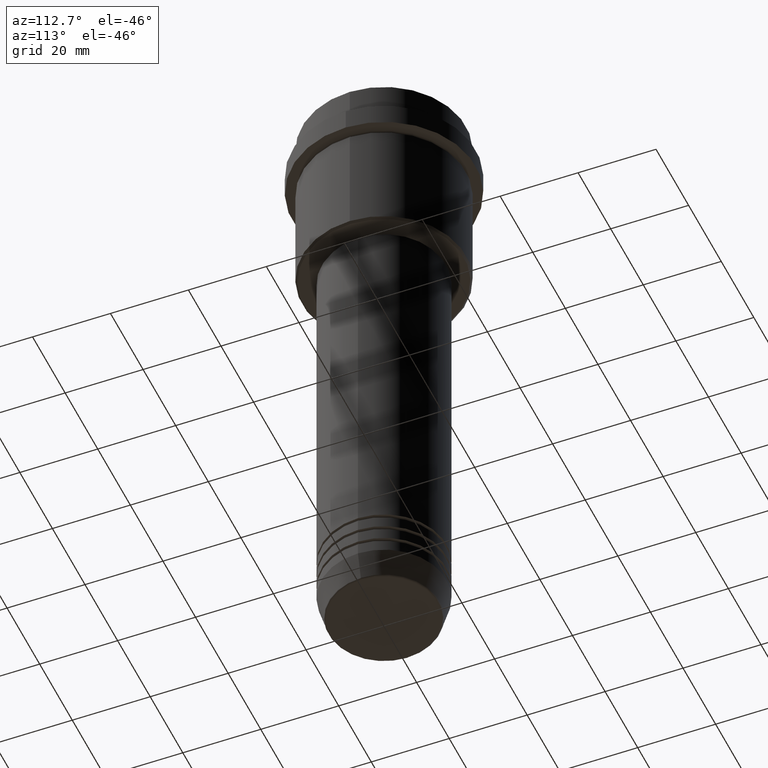
[diagram: clean part render]
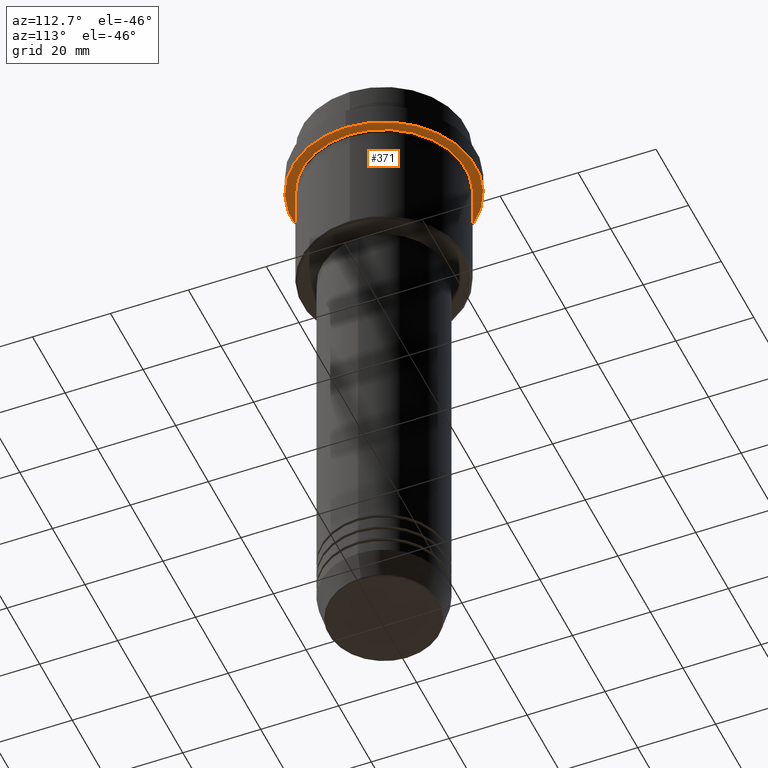
[diagram: same view with one face highlighted and labeled with its STEP entity id]
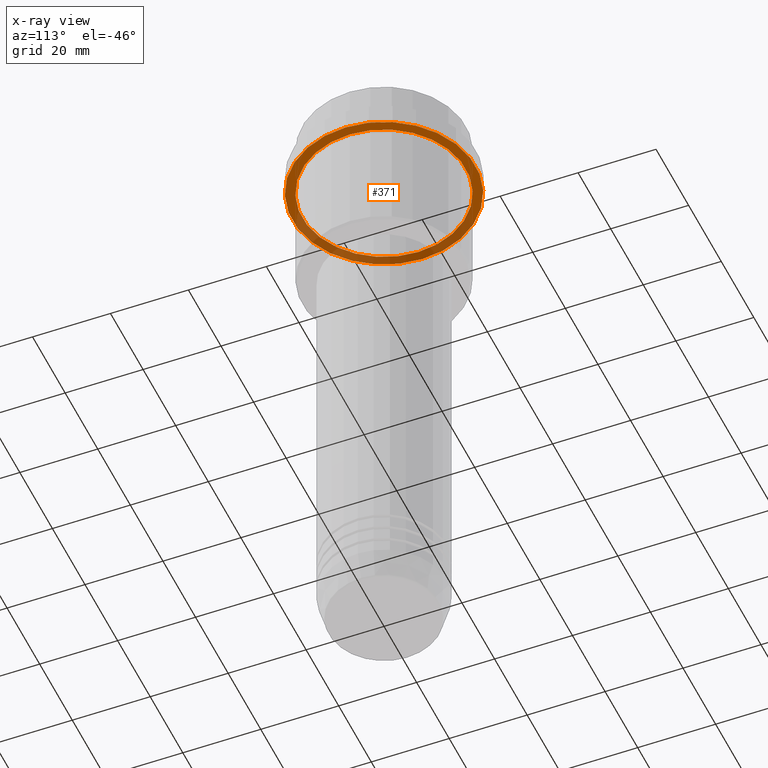
[diagram: x-ray of the same camera — body ghosted, the highlighted face saturated]
A machine part, auxiliary view. The second image highlights one B-rep face of the part: STEP entity #371.
The next image is the same camera in x-ray: the body ghosted, the highlighted face saturated — about 38% of this face is hidden behind the body in this view.
In plain terms, the highlighted planar face has unit normal (0, 0, -1).
Its self-contained STEP definition (entity closure, byte-faithful):
#4 = CIRCLE ( 'NONE', #156, 23.50000000000000355 ) ;
#56 = DIRECTION ( 'NONE',  ( -1.000000000000000000, 0.000000000000000000, 0.000000000000000000 ) ) ;
#93 = EDGE_CURVE ( 'NONE', #1173, #609, #4, .T. ) ;
#146 = CARTESIAN_POINT ( 'NONE',  ( 0.000000000000000000, 23.50000000000000355, -15.00000000000000178 ) ) ;
#156 = AXIS2_PLACEMENT_3D ( 'NONE', #729, #1270, #391 ) ;
#165 = EDGE_CURVE ( 'NONE', #209, #979, #1379, .T. ) ;
#189 = CARTESIAN_POINT ( 'NONE',  ( 0.000000000000000000, 0.000000000000000000, -15.00000000000000178 ) ) ;
#209 = VERTEX_POINT ( 'NONE', #1317 ) ;
#211 = EDGE_CURVE ( 'NONE', #609, #1173, #936, .T. ) ;
#320 = DIRECTION ( 'NONE',  ( -0.000000000000000000, -0.000000000000000000, 1.000000000000000000 ) ) ;
#325 = DIRECTION ( 'NONE',  ( 1.000000000000000000, 0.000000000000000000, 0.000000000000000000 ) ) ;
#371 = ADVANCED_FACE ( 'NONE', ( #806, #1125 ), #458, .T. ) ;
#391 = DIRECTION ( 'NONE',  ( 1.000000000000000000, 0.000000000000000000, 0.000000000000000000 ) ) ;
#418 = CARTESIAN_POINT ( 'NONE',  ( 23.50000000000000355, 0.000000000000000000, -15.00000000000000000 ) ) ;
#456 = CARTESIAN_POINT ( 'NONE',  ( 0.000000000000000000, 0.000000000000000000, -15.00000000000000178 ) ) ;
#458 = PLANE ( 'NONE',  #1204 ) ;
#528 = DIRECTION ( 'NONE',  ( -0.000000000000000000, -0.000000000000000000, 1.000000000000000000 ) ) ;
#572 = DIRECTION ( 'NONE',  ( -1.000000000000000000, 0.000000000000000000, 0.000000000000000000 ) ) ;
#585 = ORIENTED_EDGE ( 'NONE', *, *, #165, .T. ) ;
#586 = DIRECTION ( 'NONE',  ( 0.000000000000000000, 0.000000000000000000, -1.000000000000000000 ) ) ;
#609 = VERTEX_POINT ( 'NONE', #418 ) ;
#663 = CARTESIAN_POINT ( 'NONE',  ( 0.000000000000000000, 0.000000000000000000, -15.00000000000000000 ) ) ;
#696 = DIRECTION ( 'NONE',  ( -0.000000000000000000, -0.000000000000000000, 1.000000000000000000 ) ) ;
#707 = CARTESIAN_POINT ( 'NONE',  ( -20.99999999999999289, 0.000000000000000000, -15.00000000000000178 ) ) ;
#729 = CARTESIAN_POINT ( 'NONE',  ( 0.000000000000000000, 0.000000000000000000, -15.00000000000000000 ) ) ;
#763 = CIRCLE ( 'NONE', #1272, 20.99999999999999289 ) ;
#806 = FACE_BOUND ( 'NONE', #1192, .T. ) ;
#871 = AXIS2_PLACEMENT_3D ( 'NONE', #663, #320, #325 ) ;
#936 = CIRCLE ( 'NONE', #871, 23.50000000000000355 ) ;
#938 = EDGE_CURVE ( 'NONE', #979, #209, #763, .T. ) ;
#979 = VERTEX_POINT ( 'NONE', #707 ) ;
#1013 = ORIENTED_EDGE ( 'NONE', *, *, #211, .F. ) ;
#1023 = AXIS2_PLACEMENT_3D ( 'NONE', #189, #528, #56 ) ;
#1024 = EDGE_LOOP ( 'NONE', ( #1013, #1064 ) ) ;
#1026 = DIRECTION ( 'NONE',  ( -1.000000000000000000, 0.000000000000000000, -0.000000000000000000 ) ) ;
#1064 = ORIENTED_EDGE ( 'NONE', *, *, #93, .F. ) ;
#1125 = FACE_OUTER_BOUND ( 'NONE', #1024, .T. ) ;
#1173 = VERTEX_POINT ( 'NONE', #1362 ) ;
#1192 = EDGE_LOOP ( 'NONE', ( #1416, #585 ) ) ;
#1204 = AXIS2_PLACEMENT_3D ( 'NONE', #146, #586, #1026 ) ;
#1270 = DIRECTION ( 'NONE',  ( -0.000000000000000000, -0.000000000000000000, 1.000000000000000000 ) ) ;
#1272 = AXIS2_PLACEMENT_3D ( 'NONE', #456, #696, #572 ) ;
#1317 = CARTESIAN_POINT ( 'NONE',  ( 20.99999999999999289, 2.571758278209440872E-15, -15.00000000000000178 ) ) ;
#1362 = CARTESIAN_POINT ( 'NONE',  ( -23.50000000000000711, 2.877919977996281109E-15, -15.00000000000000000 ) ) ;
#1379 = CIRCLE ( 'NONE', #1023, 20.99999999999999289 ) ;
#1416 = ORIENTED_EDGE ( 'NONE', *, *, #938, .T. ) ;